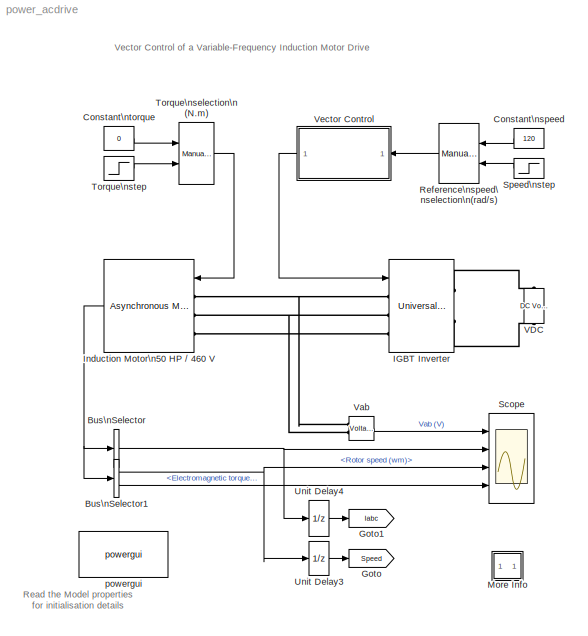
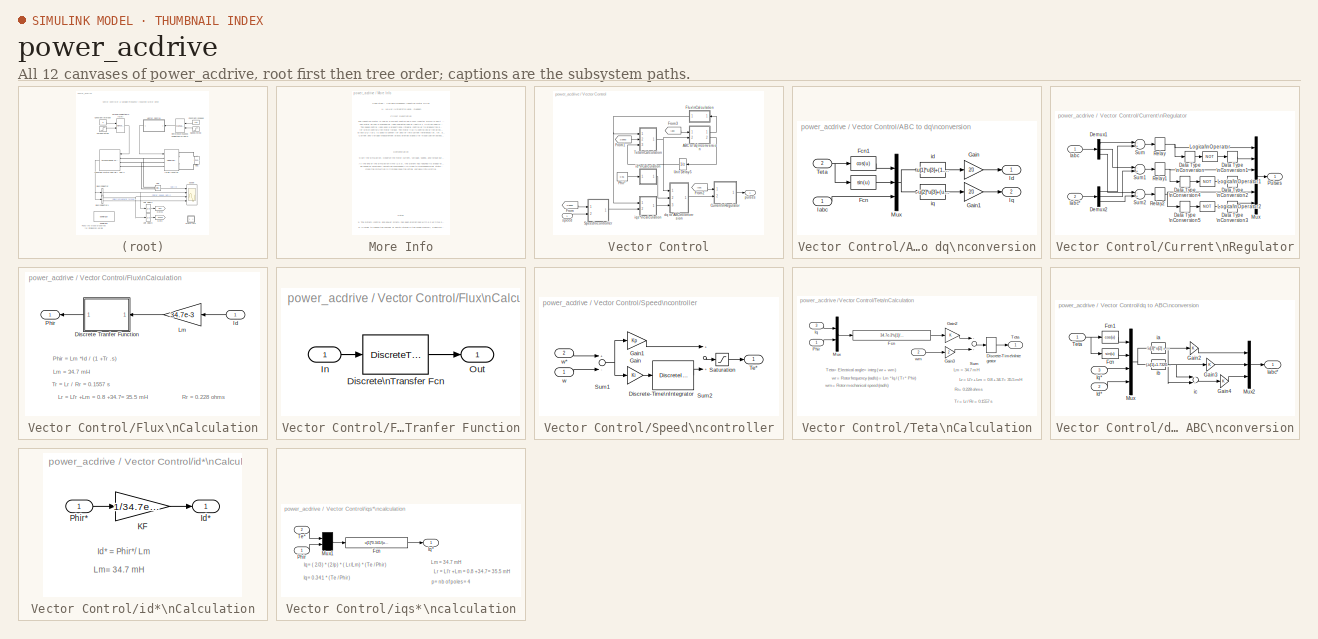
[diagram: thumbnail index - all 12 canvases of the model, root first then tree order]
MODEL power_acdrive
KIND model
CONFIG InitFcn = assignin('base','Ts',[2e-6]); load power_acdrive_init;
BLOCK [BusSelector] Bus\nSelector
  DialogController = Simulink.DDGSource_Bus
  MuxedOutput = on
  OutputSignals = Stator measurements.Stator current is_a (A),Stator measurements.Stator current is_b (A),Stator measurements.Stator current is_c (A)
  Ports = [1, 1]
BLOCK [BusSelector] Bus\nSelector1
  DialogController = Simulink.DDGSource_Bus
  OutputSignals = Mechanical.Rotor speed (wm),Mechanical.Electromagnetic torque Te (N*m)
  Ports = [1, 2]
BLOCK [Constant] Constant\nspeed
  Value = 120
BLOCK [Constant] Constant\ntorque
  Value = 0
BLOCK [Goto] Goto
  DialogController = Simulink.DDGSource
  GotoTag = Speed
  TagVisibility = global
BLOCK [Goto] Goto1
  DialogController = Simulink.DDGSource
  GotoTag = Iabc
  TagVisibility = global
BLOCK [Reference] IGBT Inverter  REF=powerlib/Power\nElectronics/Universal Bridge
  Arms = 3
  AttributesFormatString = \\n
  Device = IGBT / Diodes
  ForwardVoltage = .8
  ForwardVoltages = [  0.8  0.8  ]
  GTOparameters = [ 1e-6 , 1e-6 ]
  IGBTparameters = [ 1e-6 , 2e-6 ]
  Lon = 0
  Measurements = None
  Ports = [1, 0, 0, 0, 0, 3, 2]
  Ron = 1e-3
  ShowPortLabels = on
  SnubberCapacitance = inf
  SnubberResistance = 1000
  SourceBlock = powerlib/Power\nElectronics/Universal Bridge
  SourceType = Universal Bridge
BLOCK [Reference] Induction Motor\n50 HP // 460 V  REF=powerlib/Machines/Asynchronous Machine\nSI Units
  AttributesFormatString = \\n
  InitialConditions = [ 1, 0 ,  0 , 0 , 0 , 0 , 0 , 0 ]
  Lm = 34.7e-3
  LoadFlowParameters = 0
  Mechanical = [1.662  0.1 2 ]
  NominalParameters = [ 50*746, 460, 60 ]
  Ports = [1, 1, 0, 0, 0, 3]
  PresetModel = No
  ReferenceFrame = Stationary
  Rotor = [ 0.228  0.8e-3 ]
  RotorType = Squirrel-cage
  ShowDetailedParameters = on
  ShowPortLabels = on
  SourceBlock = powerlib/Machines/Asynchronous Machine\nSI Units
  SourceType = Asynchronous Machine
  Stator = [ 0.087 0.8e-3 ]
  Units = 1
BLOCK [SubSystem] More Info
  MaskDisplay = disp('?')
  MaskIconFrame = on
  MaskIconOpaque = on
  MaskIconRotate = none
  MaskIconUnits = autoscale
  MinAlgLoopOccurrences = off
  Ports = []
  RTWSystemCode = Auto
  TreatAsAtomicUnit = off
BLOCK [Reference] Reference\nspeed\nselection\n(rad//s)  REF=simulink/Signal\nRouting/Manual Switch
  Ports = [2, 1]
  ShowPortLabels = on
  SourceBlock = simulink/Signal\nRouting/Manual Switch
  SourceType = Manual Switch
  action = 0
  sw = 1
BLOCK [Scope] Scope
  DataFormat = StructureWithTime
  Decimation = 20
  LimitDataPoints = off
  NumInputPorts = 4
  Ports = [4]
  SampleTime = 5e-6
  TimeRange = 2.5
  YMax = 1000~200~180~400
  YMin = -1000~-200~100~-100
  ZoomMode = yonly
BLOCK [Step] Speed\nstep
  After = 160
  Before = 120
  SampleTime = 0
  Time = 0.2
BLOCK [Reference] Torque\nselection\n(N.m)  REF=simulink/Signal\nRouting/Manual Switch
  Ports = [2, 1]
  ShowPortLabels = on
  SourceBlock = simulink/Signal\nRouting/Manual Switch
  SourceType = Manual Switch
  action = 0
  sw = 1
BLOCK [Step] Torque\nstep
  After = 200
  SampleTime = 0
  Time = 1.8
BLOCK [UnitDelay] Unit Delay3
  SampleTime = Ts
BLOCK [UnitDelay] Unit Delay4
  SampleTime = Ts
BLOCK [Reference] VDC  REF=powerlib/Electrical\nSources/DC Voltage Source
  Amplitude = 780
  AttributesFormatString = \\n
  Description = source block
  Measurements = None
  Ports = [0, 0, 0, 0, 0, 1, 1]
  ShowPortLabels = on
  SourceBlock = powerlib/Electrical\nSources/DC Voltage Source
  SourceType = DC Voltage Source
BLOCK [Reference] Vab  REF=powerlib/Measurements/Voltage Measurement
  AttributesFormatString = \\n
  OutputType = Magnitude
  PSBequivalent = 0
  PhasorSimulation = off
  Ports = [0, 1, 0, 0, 0, 2]
  ShowPortLabels = on
  SourceBlock = powerlib/Measurements/Voltage Measurement
  SourceType = Voltage Measurement
  Tag = PoWeRsYsTeMmEaSuReMeNt
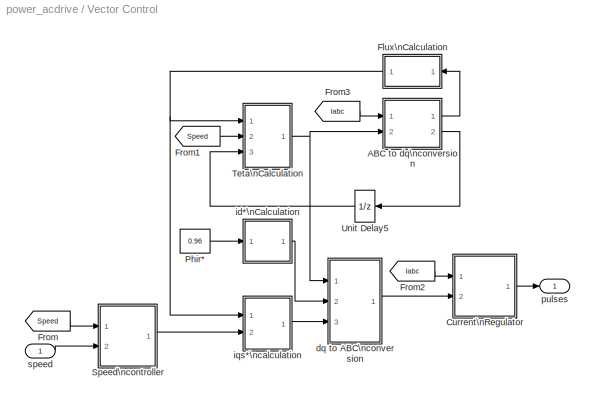
BLOCK [SubSystem] Vector Control
  MinAlgLoopOccurrences = off
  Ports = [1, 1]
  RTWSystemCode = Auto
  TreatAsAtomicUnit = off
BLOCK [SubSystem] Vector Control/ABC to dq\nconversion
  MinAlgLoopOccurrences = off
  Ports = [2, 2]
  RTWSystemCode = Auto
  TreatAsAtomicUnit = off
BLOCK [Fcn] Vector Control/ABC to dq\nconversion/Fcn
  Expr = sin(u)
BLOCK [Fcn] Vector Control/ABC to dq\nconversion/Fcn1
  Expr = cos(u)
BLOCK [Gain] Vector Control/ABC to dq\nconversion/Gain
  Gain = 2/3
BLOCK [Gain] Vector Control/ABC to dq\nconversion/Gain1
  Gain = 2/3
BLOCK [Inport] Vector Control/ABC to dq\nconversion/Iabc
  IconDisplay = Port number
  LatchInput = off
  Port = 1
BLOCK [Outport] Vector Control/ABC to dq\nconversion/Id
  BusOutputAsStruct = off
  IconDisplay = Port number
  InitialOutput = 0
BLOCK [Outport] Vector Control/ABC to dq\nconversion/Iq
  BusOutputAsStruct = off
  IconDisplay = Port number
  InitialOutput = 0
  Port = 2
BLOCK [Mux] Vector Control/ABC to dq\nconversion/Mux
  Inputs = [1 1 3]
  Ports = [3, 1]
BLOCK [Inport] Vector Control/ABC to dq\nconversion/Teta
  IconDisplay = Port number
  LatchInput = off
  Port = 2
BLOCK [Fcn] Vector Control/ABC to dq\nconversion/id
  Expr = u[1]*u[3]+(1.7320508*u[2]-u[1])*u[4]*0.5+(-u[1]-1.7320508*u[2])*u[5]*0.5
BLOCK [Fcn] Vector Control/ABC to dq\nconversion/iq
  Expr = -u[2]*u[3]+(u[2]+1.7320508*u[1])*u[4]*0.5+(u[2]-1.7320508*u[1])*u[5]*0.5
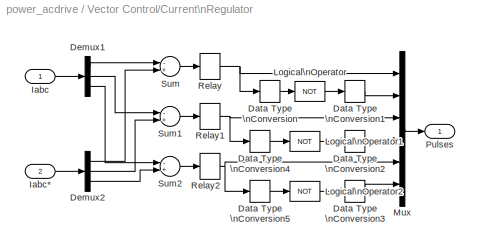
BLOCK [SubSystem] Vector Control/Current\nRegulator
  MaskEnableString = on
  MaskIconFrame = on
  MaskIconOpaque = off
  MaskIconRotate = none
  MaskIconUnits = autoscale
  MaskPromptString = Hysteresis band (A)
  MaskStyleString = edit
  MaskToolTipString = on
  MaskTunableValueString = on
  MaskType = Regulateur de courant a hysteresis
  MaskValueString = 20
  MaskVariables = h=@1;
  MaskVisibilityString = on
  MinAlgLoopOccurrences = off
  Ports = [2, 1]
  RTWSystemCode = Auto
  TreatAsAtomicUnit = off
BLOCK [DataTypeConversion] Vector Control/Current\nRegulator/Data Type \nConversion
  OutDataTypeMode = boolean
BLOCK [DataTypeConversion] Vector Control/Current\nRegulator/Data Type \nConversion1
  OutDataTypeMode = double
BLOCK [DataTypeConversion] Vector Control/Current\nRegulator/Data Type \nConversion2
  OutDataTypeMode = double
BLOCK [DataTypeConversion] Vector Control/Current\nRegulator/Data Type \nConversion3
  OutDataTypeMode = double
BLOCK [DataTypeConversion] Vector Control/Current\nRegulator/Data Type \nConversion4
  OutDataTypeMode = boolean
BLOCK [DataTypeConversion] Vector Control/Current\nRegulator/Data Type \nConversion5
  OutDataTypeMode = boolean
BLOCK [Demux] Vector Control/Current\nRegulator/Demux1
  Outputs = 3
  Ports = [1, 3]
BLOCK [Demux] Vector Control/Current\nRegulator/Demux2
  Outputs = 3
  Ports = [1, 3]
BLOCK [Inport] Vector Control/Current\nRegulator/Iabc
  IconDisplay = Port number
  LatchInput = off
  Port = 1
BLOCK [Inport] Vector Control/Current\nRegulator/Iabc*
  IconDisplay = Port number
  LatchInput = off
  Port = 2
BLOCK [Logic] Vector Control/Current\nRegulator/Logical\nOperator
  Operator = NOT
  Ports = [1, 1]
BLOCK [Logic] Vector Control/Current\nRegulator/Logical\nOperator1
  Operator = NOT
  Ports = [1, 1]
BLOCK [Logic] Vector Control/Current\nRegulator/Logical\nOperator2
  Operator = NOT
  Ports = [1, 1]
BLOCK [Mux] Vector Control/Current\nRegulator/Mux
  Inputs = 6
  Ports = [6, 1]
BLOCK [Outport] Vector Control/Current\nRegulator/Pulses
  BusOutputAsStruct = off
  IconDisplay = Port number
  InitialOutput = 0
BLOCK [Relay] Vector Control/Current\nRegulator/Relay
  OffSwitchValue = -h/2
  OnSwitchValue = h/2
BLOCK [Relay] Vector Control/Current\nRegulator/Relay1
  OffSwitchValue = -h/2
  OnSwitchValue = h/2
BLOCK [Relay] Vector Control/Current\nRegulator/Relay2
  OffSwitchValue = -h/2
  OnSwitchValue = h/2
BLOCK [Sum] Vector Control/Current\nRegulator/Sum
  Inputs = -+
  Ports = [2, 1]
BLOCK [Sum] Vector Control/Current\nRegulator/Sum1
  Inputs = -+
  Ports = [2, 1]
BLOCK [Sum] Vector Control/Current\nRegulator/Sum2
  Inputs = -+
  Ports = [2, 1]
BLOCK [SubSystem] Vector Control/Flux\nCalculation
  MaskIconFrame = on
  MaskIconOpaque = off
  MaskIconRotate = none
  MaskIconUnits = autoscale
  MaskInitialization = NF=0.44572610323020e-6;\nDF=[1 -0.99998715486734];
  MaskType = Flux Calcultation
  MinAlgLoopOccurrences = off
  Ports = [1, 1]
  RTWSystemCode = Auto
  TreatAsAtomicUnit = off
BLOCK [SubSystem] Vector Control/Flux\nCalculation/Discrete Tranfer Function
  MaskCallbackString = |
  MaskDescription = H(s)=1/(1+T.s)
  MaskDisplay = plot(X,Y);\ndisp(str);\n
  MaskEnableString = on,on
  MaskIconFrame = on
  MaskIconOpaque = on
  MaskIconRotate = none
  MaskIconUnits = autoscale
  MaskInitialization = X=[0 1 2 3 4];\n Y=[-2 -2 -3 -4 -4];\n str=sprintf('\\nH=1/(1+T.s)\\n T= %g s<path>',T);\nnum=1;\nden=[T 1];\n\n% discrete transfer function\n% descending powers of z\nnumd= Ts/T;\ndend=[ 1  (Ts-T)/T];\n\n
  MaskPromptString = Time constant T (s) :|Time step (s)
  MaskStyleString = edit,edit
  MaskTabNameString = ,
  MaskToolTipString = on,on
  MaskTunableValueString = on,on
  MaskType = First Order Low Pass Filter (Discrete)
  MaskValueString = 0.1557|Ts
  MaskVarAliasString = ,
  MaskVariables = T=@1;Ts=@2;
  MaskVisibilityString = on,on
  MinAlgLoopOccurrences = off
  Ports = [1, 1]
  RTWSystemCode = Auto
  TreatAsAtomicUnit = off
BLOCK [DiscreteTransferFcn] Vector Control/Flux\nCalculation/Discrete Tranfer Function/Discrete\nTransfer Fcn
  Denominator = dend
  Numerator = numd
  SampleTime = Ts
BLOCK [Inport] Vector Control/Flux\nCalculation/Discrete Tranfer Function/In
  IconDisplay = Port number
  LatchInput = off
  Port = 1
BLOCK [Outport] Vector Control/Flux\nCalculation/Discrete Tranfer Function/Out
  BusOutputAsStruct = off
  IconDisplay = Port number
  InitialOutput = 0
BLOCK [Inport] Vector Control/Flux\nCalculation/Id
  IconDisplay = Port number
  LatchInput = off
  Port = 1
BLOCK [Gain] Vector Control/Flux\nCalculation/Lm
  Gain = 34.7e-3
BLOCK [Outport] Vector Control/Flux\nCalculation/Phir
  BusOutputAsStruct = off
  IconDisplay = Port number
BLOCK [From] Vector Control/From
  CloseFcn = tagdialog Close
  DialogController = Simulink.DDGSource
  GotoTag = Speed
BLOCK [From] Vector Control/From1
  CloseFcn = tagdialog Close
  DialogController = Simulink.DDGSource
  GotoTag = Speed
BLOCK [From] Vector Control/From2
  CloseFcn = tagdialog Close
  DialogController = Simulink.DDGSource
  GotoTag = Iabc
BLOCK [From] Vector Control/From3
  CloseFcn = tagdialog Close
  DialogController = Simulink.DDGSource
  GotoTag = Iabc
BLOCK [Constant] Vector Control/Phir*
  Value = 0.96
BLOCK [SubSystem] Vector Control/Speed\ncontroller
  MaskCallbackString = |||
  MaskDescription = Proportional-Integral Speed Controller
  MaskDisplay = plot(0,0,100,100,[35,35,65],[70,30,30],[35,65],[45,60])
  MaskEnableString = on,on,on,on
  MaskIconFrame = on
  MaskIconOpaque = off
  MaskIconRotate = none
  MaskIconUnits = autoscale
  MaskPromptString = Proportional gain (Kp)|Integral gain (Ki)|Torque limit (N.m)|Sampling time (s)
  MaskStyleString = edit,edit,edit,edit
  MaskTabNameString = ,,,
  MaskToolTipString = on,on,on,on
  MaskTunableValueString = on,on,on,on
  MaskType = PI controller
  MaskValueString = 13|26|300|Ts
  MaskVarAliasString = ,,,
  MaskVariables = Kp=@1;Ki=@2;Tlim=@3;Ts=@4;
  MaskVisibilityString = on,on,on,on
  MinAlgLoopOccurrences = off
  Ports = [2, 1]
  RTWSystemCode = Auto
  TreatAsAtomicUnit = off
BLOCK [DiscreteIntegrator] Vector Control/Speed\ncontroller/Discrete-Time\nIntegrator
  ExternalReset = none
  ICPrevOutput = DiscIntNeverNeededParam
  ICPrevScaledInput = DiscIntNeverNeededParam
  InitialConditionSource = internal
  IntegratorMethod = Integration: Trapezoidal
  LimitOutput = on
  LowerSaturationLimit = -Tlim
  Ports = [1, 1]
  SampleTime = Ts
  UpperSaturationLimit = Tlim
BLOCK [Gain] Vector Control/Speed\ncontroller/Gain
  Gain = Ki
BLOCK [Gain] Vector Control/Speed\ncontroller/Gain1
  Gain = Kp
BLOCK [Saturate] Vector Control/Speed\ncontroller/Saturation
  LowerLimit = -Tlim
  UpperLimit = Tlim
BLOCK [Sum] Vector Control/Speed\ncontroller/Sum1
  Inputs = +-
  Ports = [2, 1]
BLOCK [Sum] Vector Control/Speed\ncontroller/Sum2
  Ports = [2, 1]
BLOCK [Outport] Vector Control/Speed\ncontroller/Te*
  BusOutputAsStruct = off
  IconDisplay = Port number
  InitialOutput = 0
BLOCK [Inport] Vector Control/Speed\ncontroller/w
  IconDisplay = Port number
  LatchInput = off
  Port = 1
BLOCK [Inport] Vector Control/Speed\ncontroller/w*
  IconDisplay = Port number
  LatchInput = off
  Port = 2
BLOCK [SubSystem] Vector Control/Teta\nCalculation
  MinAlgLoopOccurrences = off
  Ports = [3, 1]
  RTWSystemCode = Auto
  TreatAsAtomicUnit = off
BLOCK [DiscreteIntegrator] Vector Control/Teta\nCalculation/Discrete-Time\nIntegrator
  ExternalReset = none
  ICPrevOutput = DiscIntNeverNeededParam
  ICPrevScaledInput = DiscIntNeverNeededParam
  InitialConditionSource = internal
  IntegratorMethod = Integration: Forward Euler
  Ports = [1, 1]
  SampleTime = Ts
BLOCK [Fcn] Vector Control/Teta\nCalculation/Fcn
  Expr = 34.7e-3*u[1]/(u[2]*0.1557+1e-3)
BLOCK [Gain] Vector Control/Teta\nCalculation/Gain2
BLOCK [Gain] Vector Control/Teta\nCalculation/Gain3
  Gain = 2
BLOCK [Inport] Vector Control/Teta\nCalculation/Iq
  IconDisplay = Port number
  LatchInput = off
  Port = 3
BLOCK [Mux] Vector Control/Teta\nCalculation/Mux
  Inputs = 2
  Ports = [2, 1]
BLOCK [Inport] Vector Control/Teta\nCalculation/Phir
  IconDisplay = Port number
  LatchInput = off
  Port = 1
BLOCK [Sum] Vector Control/Teta\nCalculation/Sum
  Ports = [2, 1]
BLOCK [Outport] Vector Control/Teta\nCalculation/Teta
  BusOutputAsStruct = off
  IconDisplay = Port number
  InitialOutput = 0
BLOCK [Inport] Vector Control/Teta\nCalculation/wm
  IconDisplay = Port number
  LatchInput = off
  Port = 2
BLOCK [UnitDelay] Vector Control/Unit Delay5
  SampleTime = Ts
BLOCK [SubSystem] Vector Control/dq to ABC\nconversion
  MinAlgLoopOccurrences = off
  Ports = [3, 1]
  RTWSystemCode = Auto
  TreatAsAtomicUnit = off
BLOCK [Fcn] Vector Control/dq to ABC\nconversion/Fcn
  Expr = sin(u)
BLOCK [Fcn] Vector Control/dq to ABC\nconversion/Fcn1
  Expr = cos(u)
BLOCK [Gain] Vector Control/dq to ABC\nconversion/Gain2
BLOCK [Gain] Vector Control/dq to ABC\nconversion/Gain3
BLOCK [Gain] Vector Control/dq to ABC\nconversion/Gain4
BLOCK [Outport] Vector Control/dq to ABC\nconversion/Iabc*
  BusOutputAsStruct = off
  IconDisplay = Port number
  InitialOutput = 0
BLOCK [Inport] Vector Control/dq to ABC\nconversion/Id*
  IconDisplay = Port number
  LatchInput = off
  Port = 2
BLOCK [Inport] Vector Control/dq to ABC\nconversion/Iq*
  IconDisplay = Port number
  LatchInput = off
  Port = 3
BLOCK [Mux] Vector Control/dq to ABC\nconversion/Mux
  Ports = [4, 1]
BLOCK [Mux] Vector Control/dq to ABC\nconversion/Mux2
  Inputs = 3
  Ports = [3, 1]
BLOCK [Inport] Vector Control/dq to ABC\nconversion/Teta
  IconDisplay = Port number
  LatchInput = off
  Port = 1
BLOCK [Fcn] Vector Control/dq to ABC\nconversion/ia
  Expr = -u[3]*u[2] + u[4]*u[1]
BLOCK [Fcn] Vector Control/dq to ABC\nconversion/ib
  Expr = (-u[1]+1.7320508*u[2])*u[4]*0.5+(u[2]+1.7320508*u[1])*u[3]*0.5
BLOCK [Sum] Vector Control/dq to ABC\nconversion/ic
  Inputs = --
  Ports = [2, 1]
BLOCK [SubSystem] Vector Control/id*\nCalculation
  MinAlgLoopOccurrences = off
  Ports = [1, 1]
  RTWSystemCode = Auto
  TreatAsAtomicUnit = off
BLOCK [Outport] Vector Control/id*\nCalculation/Id*
  BusOutputAsStruct = off
  IconDisplay = Port number
BLOCK [Gain] Vector Control/id*\nCalculation/KF
  Gain = 1/34.7e-3
BLOCK [Inport] Vector Control/id*\nCalculation/Phir*
  IconDisplay = Port number
  LatchInput = off
  Port = 1
BLOCK [SubSystem] Vector Control/iqs*\ncalculation
  MinAlgLoopOccurrences = off
  Ports = [2, 1]
  RTWSystemCode = Auto
  TreatAsAtomicUnit = off
BLOCK [Fcn] Vector Control/iqs*\ncalculation/Fcn
  Expr = u[1]*0.341/(u[2]+1e-3)
BLOCK [Outport] Vector Control/iqs*\ncalculation/Iq*
  BusOutputAsStruct = off
  IconDisplay = Port number
  InitialOutput = 0
BLOCK [Mux] Vector Control/iqs*\ncalculation/Mux1
  Inputs = 2
  Ports = [2, 1]
BLOCK [Inport] Vector Control/iqs*\ncalculation/Phir
  IconDisplay = Port number
  LatchInput = off
  Port = 1
BLOCK [Inport] Vector Control/iqs*\ncalculation/Te*
  IconDisplay = Port number
  LatchInput = off
  Port = 2
BLOCK [Outport] Vector Control/pulses
  BusOutputAsStruct = off
  IconDisplay = Port number
BLOCK [Inport] Vector Control/speed
  IconDisplay = Port number
  LatchInput = off
  Port = 1
BLOCK [Reference] powergui  REF=powerlib/powergui
  DisplayStyle = off
  Frange = [0:2:500]
  FreqAxis = off
  MaxFrequency = 1000
  Ports = []
  Priority = 2
  RmsSteady = 1
  ShowPortLabels = on
  SourceBlock = powerlib/powergui
  SourceType = PSB option menu block
  StartTime = 0.0
  Ts = Ts
  Xlog = on
  Ylog = off
  ZoomFFT = on
  cycles = 1
  display = off
  echomessages = off
  frequency = 60
  frequencyindice = 1
  frequencyindicesteady = 1
  fundamental = 60
  methode = off
  save = off
  variable = ZData
ANNOTATION (root): Read the Model properties\nfor initialisation details
ANNOTATION (root): Vector Control of a Variable-Frequency Induction Motor Drive
ANNOTATION More Info: 1) The system (control and power sytem) has been discretized with a 2 us time step.
ANNOTATION More Info: 2) In order to reduce the number of points stored in the scope memory, a decimation factor of 20 is used.
ANNOTATION More Info: Case study : Variable-Frequency Induction Motor Drive
ANNOTATION More Info: Circuit Description
ANNOTATION More Info: Demonstration
ANNOTATION More Info: H. Le-Huy (Universite Laval, Quebec)
ANNOTATION More Info: Notes
ANNOTATION More Info: Start the simulation. Observe the motor current, voltage, speed, and torque during the starting on the scope.\n\nAt the end of the simulation time (2.5 s), the system has reached its steady-state. The final state vector can\nbe saved by previously selecting 'Workspace I/O/Save to workspace/Final state' in Simulation/Parameters window.\nOnce the simultion is finished save the xFinal variable into x...<+694ch>
ANNOTATION More Info: The induction motor is fed by a current-controlled PWM inverter which is built using a Universal Bridge block. \nThe motor drives a mechanical load characterized by inertia J, friction coeficient B, and load torque TL . \nThe speed control loop uses a proportional-integral controller to produce the quadrature-axis current reference \niq* which controls the motor torque. The motor flux is controlle...<+349ch>
ANNOTATION Vector Control/Flux\nCalculation: Lm = 34.7 mH
ANNOTATION Vector Control/Flux\nCalculation: Lr = Ll'r +Lm = 0.8 +34.7= 35.5 mH
ANNOTATION Vector Control/Flux\nCalculation: Phir = Lm *Id / (1 +Tr .s)
ANNOTATION Vector Control/Flux\nCalculation: Rr = 0.228 ohms
ANNOTATION Vector Control/Flux\nCalculation: Tr = Lr / Rr = 0.1557 s
ANNOTATION Vector Control/Teta\nCalculation: Teta= Electrical angle= integ ( wr + wm)
ANNOTATION Vector Control/Teta\nCalculation: Lm = 34.7 mH
ANNOTATION Vector Control/Teta\nCalculation: Lr = Ll'r +Lm = 0.8 +34.7= 35.5 mH
ANNOTATION Vector Control/Teta\nCalculation: Rr= 0.228 ohms
ANNOTATION Vector Control/Teta\nCalculation: Tr = Lr / Rr = 0.1557 s
ANNOTATION Vector Control/Teta\nCalculation: wm= Rotor mechanical speed (rad/s)
ANNOTATION Vector Control/Teta\nCalculation: wr = Rotor frequency (rad/s) = Lm *Iq / ( Tr * Phir)
ANNOTATION Vector Control/id*\nCalculation: Id* = Phir*/ Lm
ANNOTATION Vector Control/id*\nCalculation: Lm= 34.7 mH
ANNOTATION Vector Control/iqs*\ncalculation: Iq= ( 2/3) * (2/p) * ( Lr/Lm) * (Te / Phir)
ANNOTATION Vector Control/iqs*\ncalculation: Iq= 0.341 * (Te / Phir)
ANNOTATION Vector Control/iqs*\ncalculation: Lm = 34.7 mH
ANNOTATION Vector Control/iqs*\ncalculation: Lr = Ll'r +Lm = 0.8 +34.7= 35.5 mH
ANNOTATION Vector Control/iqs*\ncalculation: p= nb of poles = 4
NET Bus\nSelector1:1 -> Scope:3, Unit Delay3:1
LINE Bus\nSelector1:2 -> Scope:4
NET Bus\nSelector:1 -> Scope:2, Unit Delay4:1
LINE Constant\nspeed:1 -> Reference\nspeed\nselection\n(rad//s):1
LINE Constant\ntorque:1 -> Torque\nselection\n(N.m):1
NET Induction Motor\n50 HP // 460 V:1 -> Bus\nSelector1:1, Bus\nSelector:1
LINE Reference\nspeed\nselection\n(rad//s):1 -> Vector Control:1
LINE Speed\nstep:1 -> Reference\nspeed\nselection\n(rad//s):2
LINE Torque\nselection\n(N.m):1 -> Induction Motor\n50 HP // 460 V:1
LINE Torque\nstep:1 -> Torque\nselection\n(N.m):2
LINE Unit Delay3:1 -> Goto:1
LINE Unit Delay4:1 -> Goto1:1
LINE Vab:1 -> Scope:1
LINE Vector Control/ABC to dq\nconversion/Fcn1:1 -> Vector Control/ABC to dq\nconversion/Mux:1
LINE Vector Control/ABC to dq\nconversion/Fcn:1 -> Vector Control/ABC to dq\nconversion/Mux:2
LINE Vector Control/ABC to dq\nconversion/Gain1:1 -> Vector Control/ABC to dq\nconversion/Iq:1
LINE Vector Control/ABC to dq\nconversion/Gain:1 -> Vector Control/ABC to dq\nconversion/Id:1
LINE Vector Control/ABC to dq\nconversion/Iabc:1 -> Vector Control/ABC to dq\nconversion/Mux:3
NET Vector Control/ABC to dq\nconversion/Mux:1 -> Vector Control/ABC to dq\nconversion/id:1, Vector Control/ABC to dq\nconversion/iq:1
NET Vector Control/ABC to dq\nconversion/Teta:1 -> Vector Control/ABC to dq\nconversion/Fcn1:1, Vector Control/ABC to dq\nconversion/Fcn:1
LINE Vector Control/ABC to dq\nconversion/id:1 -> Vector Control/ABC to dq\nconversion/Gain:1
LINE Vector Control/ABC to dq\nconversion/iq:1 -> Vector Control/ABC to dq\nconversion/Gain1:1
LINE Vector Control/ABC to dq\nconversion:1 -> Vector Control/Flux\nCalculation:1
LINE Vector Control/ABC to dq\nconversion:2 -> Vector Control/Unit Delay5:1
LINE Vector Control/Current\nRegulator/Data Type \nConversion1:1 -> Vector Control/Current\nRegulator/Mux:2
LINE Vector Control/Current\nRegulator/Data Type \nConversion2:1 -> Vector Control/Current\nRegulator/Mux:4
LINE Vector Control/Current\nRegulator/Data Type \nConversion3:1 -> Vector Control/Current\nRegulator/Mux:6
LINE Vector Control/Current\nRegulator/Data Type \nConversion4:1 -> Vector Control/Current\nRegulator/Logical\nOperator1:1
LINE Vector Control/Current\nRegulator/Data Type \nConversion5:1 -> Vector Control/Current\nRegulator/Logical\nOperator2:1
LINE Vector Control/Current\nRegulator/Data Type \nConversion:1 -> Vector Control/Current\nRegulator/Logical\nOperator:1
LINE Vector Control/Current\nRegulator/Demux1:1 -> Vector Control/Current\nRegulator/Sum:1
LINE Vector Control/Current\nRegulator/Demux1:2 -> Vector Control/Current\nRegulator/Sum1:1
LINE Vector Control/Current\nRegulator/Demux1:3 -> Vector Control/Current\nRegulator/Sum2:1
LINE Vector Control/Current\nRegulator/Demux2:1 -> Vector Control/Current\nRegulator/Sum:2
LINE Vector Control/Current\nRegulator/Demux2:2 -> Vector Control/Current\nRegulator/Sum1:2
LINE Vector Control/Current\nRegulator/Demux2:3 -> Vector Control/Current\nRegulator/Sum2:2
LINE Vector Control/Current\nRegulator/Iabc*:1 -> Vector Control/Current\nRegulator/Demux2:1
LINE Vector Control/Current\nRegulator/Iabc:1 -> Vector Control/Current\nRegulator/Demux1:1
LINE Vector Control/Current\nRegulator/Logical\nOperator1:1 -> Vector Control/Current\nRegulator/Data Type \nConversion2:1
LINE Vector Control/Current\nRegulator/Logical\nOperator2:1 -> Vector Control/Current\nRegulator/Data Type \nConversion3:1
LINE Vector Control/Current\nRegulator/Logical\nOperator:1 -> Vector Control/Current\nRegulator/Data Type \nConversion1:1
LINE Vector Control/Current\nRegulator/Mux:1 -> Vector Control/Current\nRegulator/Pulses:1
NET Vector Control/Current\nRegulator/Relay1:1 -> Vector Control/Current\nRegulator/Data Type \nConversion4:1, Vector Control/Current\nRegulator/Mux:3
NET Vector Control/Current\nRegulator/Relay2:1 -> Vector Control/Current\nRegulator/Data Type \nConversion5:1, Vector Control/Current\nRegulator/Mux:5
NET Vector Control/Current\nRegulator/Relay:1 -> Vector Control/Current\nRegulator/Data Type \nConversion:1, Vector Control/Current\nRegulator/Mux:1
LINE Vector Control/Current\nRegulator/Sum1:1 -> Vector Control/Current\nRegulator/Relay1:1
LINE Vector Control/Current\nRegulator/Sum2:1 -> Vector Control/Current\nRegulator/Relay2:1
LINE Vector Control/Current\nRegulator/Sum:1 -> Vector Control/Current\nRegulator/Relay:1
LINE Vector Control/Current\nRegulator:1 -> Vector Control/pulses:1
LINE Vector Control/Flux\nCalculation/Discrete Tranfer Function/Discrete\nTransfer Fcn:1 -> Vector Control/Flux\nCalculation/Discrete Tranfer Function/Out:1
LINE Vector Control/Flux\nCalculation/Discrete Tranfer Function/In:1 -> Vector Control/Flux\nCalculation/Discrete Tranfer Function/Discrete\nTransfer Fcn:1
LINE Vector Control/Flux\nCalculation/Discrete Tranfer Function:1 -> Vector Control/Flux\nCalculation/Phir:1
LINE Vector Control/Flux\nCalculation/Id:1 -> Vector Control/Flux\nCalculation/Lm:1
LINE Vector Control/Flux\nCalculation/Lm:1 -> Vector Control/Flux\nCalculation/Discrete Tranfer Function:1
NET Vector Control/Flux\nCalculation:1 -> Vector Control/Teta\nCalculation:1, Vector Control/iqs*\ncalculation:1
LINE Vector Control/From1:1 -> Vector Control/Teta\nCalculation:2
LINE Vector Control/From2:1 -> Vector Control/Current\nRegulator:1
LINE Vector Control/From3:1 -> Vector Control/ABC to dq\nconversion:1
LINE Vector Control/From:1 -> Vector Control/Speed\ncontroller:1
LINE Vector Control/Phir*:1 -> Vector Control/id*\nCalculation:1
LINE Vector Control/Speed\ncontroller/Discrete-Time\nIntegrator:1 -> Vector Control/Speed\ncontroller/Sum2:2
LINE Vector Control/Speed\ncontroller/Gain1:1 -> Vector Control/Speed\ncontroller/Sum2:1
LINE Vector Control/Speed\ncontroller/Gain:1 -> Vector Control/Speed\ncontroller/Discrete-Time\nIntegrator:1
LINE Vector Control/Speed\ncontroller/Saturation:1 -> Vector Control/Speed\ncontroller/Te*:1
NET Vector Control/Speed\ncontroller/Sum1:1 -> Vector Control/Speed\ncontroller/Gain1:1, Vector Control/Speed\ncontroller/Gain:1
LINE Vector Control/Speed\ncontroller/Sum2:1 -> Vector Control/Speed\ncontroller/Saturation:1
LINE Vector Control/Speed\ncontroller/w*:1 -> Vector Control/Speed\ncontroller/Sum1:1
LINE Vector Control/Speed\ncontroller/w:1 -> Vector Control/Speed\ncontroller/Sum1:2
LINE Vector Control/Speed\ncontroller:1 -> Vector Control/iqs*\ncalculation:2
LINE Vector Control/Teta\nCalculation/Discrete-Time\nIntegrator:1 -> Vector Control/Teta\nCalculation/Teta:1
LINE Vector Control/Teta\nCalculation/Fcn:1 -> Vector Control/Teta\nCalculation/Gain2:1
LINE Vector Control/Teta\nCalculation/Gain2:1 -> Vector Control/Teta\nCalculation/Sum:1
LINE Vector Control/Teta\nCalculation/Gain3:1 -> Vector Control/Teta\nCalculation/Sum:2
LINE Vector Control/Teta\nCalculation/Iq:1 -> Vector Control/Teta\nCalculation/Mux:1
LINE Vector Control/Teta\nCalculation/Mux:1 -> Vector Control/Teta\nCalculation/Fcn:1
LINE Vector Control/Teta\nCalculation/Phir:1 -> Vector Control/Teta\nCalculation/Mux:2
LINE Vector Control/Teta\nCalculation/Sum:1 -> Vector Control/Teta\nCalculation/Discrete-Time\nIntegrator:1
LINE Vector Control/Teta\nCalculation/wm:1 -> Vector Control/Teta\nCalculation/Gain3:1
NET Vector Control/Teta\nCalculation:1 -> Vector Control/ABC to dq\nconversion:2, Vector Control/dq to ABC\nconversion:1
LINE Vector Control/Unit Delay5:1 -> Vector Control/Teta\nCalculation:3
LINE Vector Control/dq to ABC\nconversion/Fcn1:1 -> Vector Control/dq to ABC\nconversion/Mux:1
LINE Vector Control/dq to ABC\nconversion/Fcn:1 -> Vector Control/dq to ABC\nconversion/Mux:2
LINE Vector Control/dq to ABC\nconversion/Gain2:1 -> Vector Control/dq to ABC\nconversion/Mux2:1
LINE Vector Control/dq to ABC\nconversion/Gain3:1 -> Vector Control/dq to ABC\nconversion/Mux2:2
LINE Vector Control/dq to ABC\nconversion/Gain4:1 -> Vector Control/dq to ABC\nconversion/Mux2:3
LINE Vector Control/dq to ABC\nconversion/Id*:1 -> Vector Control/dq to ABC\nconversion/Mux:4
LINE Vector Control/dq to ABC\nconversion/Iq*:1 -> Vector Control/dq to ABC\nconversion/Mux:3
LINE Vector Control/dq to ABC\nconversion/Mux2:1 -> Vector Control/dq to ABC\nconversion/Iabc*:1
NET Vector Control/dq to ABC\nconversion/Mux:1 -> Vector Control/dq to ABC\nconversion/ia:1, Vector Control/dq to ABC\nconversion/ib:1
NET Vector Control/dq to ABC\nconversion/Teta:1 -> Vector Control/dq to ABC\nconversion/Fcn1:1, Vector Control/dq to ABC\nconversion/Fcn:1
NET Vector Control/dq to ABC\nconversion/ia:1 -> Vector Control/dq to ABC\nconversion/Gain2:1, Vector Control/dq to ABC\nconversion/ic:2
NET Vector Control/dq to ABC\nconversion/ib:1 -> Vector Control/dq to ABC\nconversion/Gain3:1, Vector Control/dq to ABC\nconversion/ic:1
LINE Vector Control/dq to ABC\nconversion/ic:1 -> Vector Control/dq to ABC\nconversion/Gain4:1
LINE Vector Control/dq to ABC\nconversion:1 -> Vector Control/Current\nRegulator:2
LINE Vector Control/id*\nCalculation/KF:1 -> Vector Control/id*\nCalculation/Id*:1
LINE Vector Control/id*\nCalculation/Phir*:1 -> Vector Control/id*\nCalculation/KF:1
LINE Vector Control/id*\nCalculation:1 -> Vector Control/dq to ABC\nconversion:2
LINE Vector Control/iqs*\ncalculation/Fcn:1 -> Vector Control/iqs*\ncalculation/Iq*:1
LINE Vector Control/iqs*\ncalculation/Mux1:1 -> Vector Control/iqs*\ncalculation/Fcn:1
LINE Vector Control/iqs*\ncalculation/Phir:1 -> Vector Control/iqs*\ncalculation/Mux1:2
LINE Vector Control/iqs*\ncalculation/Te*:1 -> Vector Control/iqs*\ncalculation/Mux1:1
LINE Vector Control/iqs*\ncalculation:1 -> Vector Control/dq to ABC\nconversion:3
LINE Vector Control/speed:1 -> Vector Control/Speed\ncontroller:2
LINE Vector Control:1 -> IGBT Inverter:1
PNET net1: IGBT Inverter:LConn1 -- Induction Motor\n50 HP // 460 V:LConn1 -- Vab:LConn1
PNET net2: IGBT Inverter:LConn2 -- Induction Motor\n50 HP // 460 V:LConn2 -- Vab:LConn2
PLINE IGBT Inverter:LConn3 -- Induction Motor\n50 HP // 460 V:LConn3
PLINE IGBT Inverter:RConn1 -- VDC:RConn1
PLINE IGBT Inverter:RConn2 -- VDC:LConn1
note: NET lines group one-source signal fan-out (src -> all destinations, sorted); 1:1 wires keep LINE; PNET lines group multi-terminal physical nets as a canonical sorted terminal list (undirected conserving connections); 2-terminal nets keep the pairwise PLINE form
note: 1 file-system path scrubbed to <path> (not preserved elsewhere — flat text is the only slx artifact)
